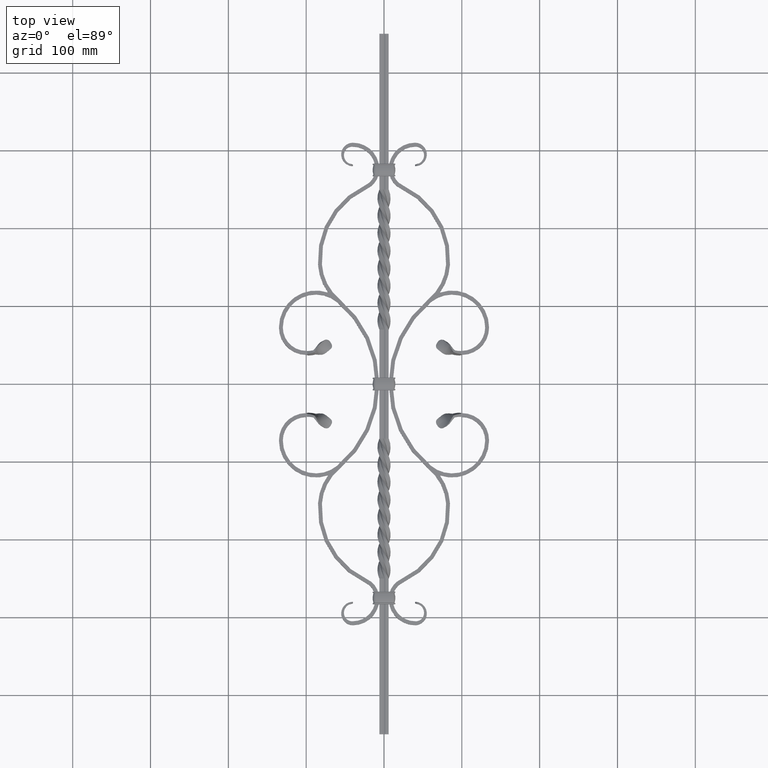
[diagram: clean part render]
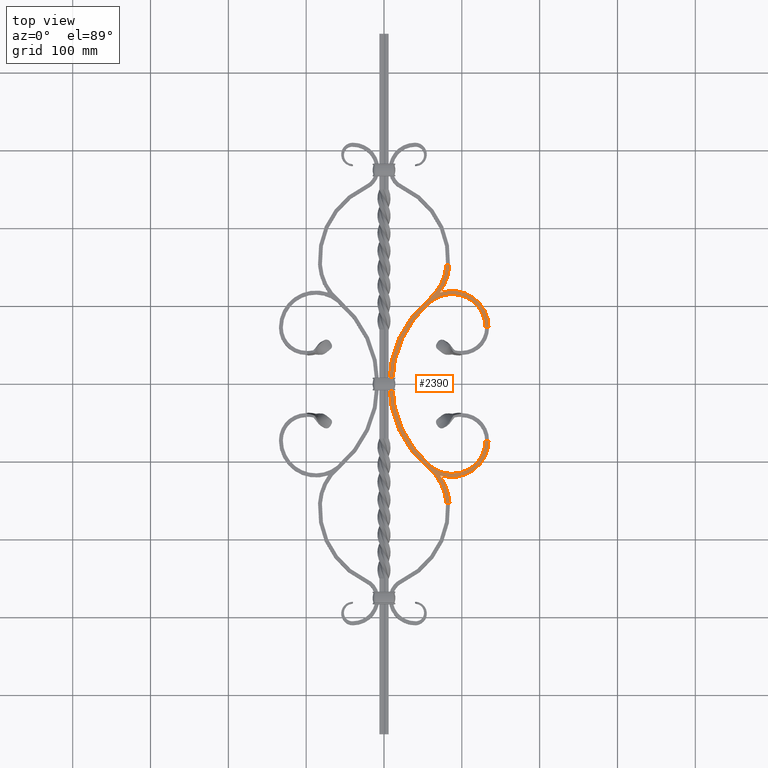
[diagram: same view with one face highlighted and labeled with its STEP entity id]
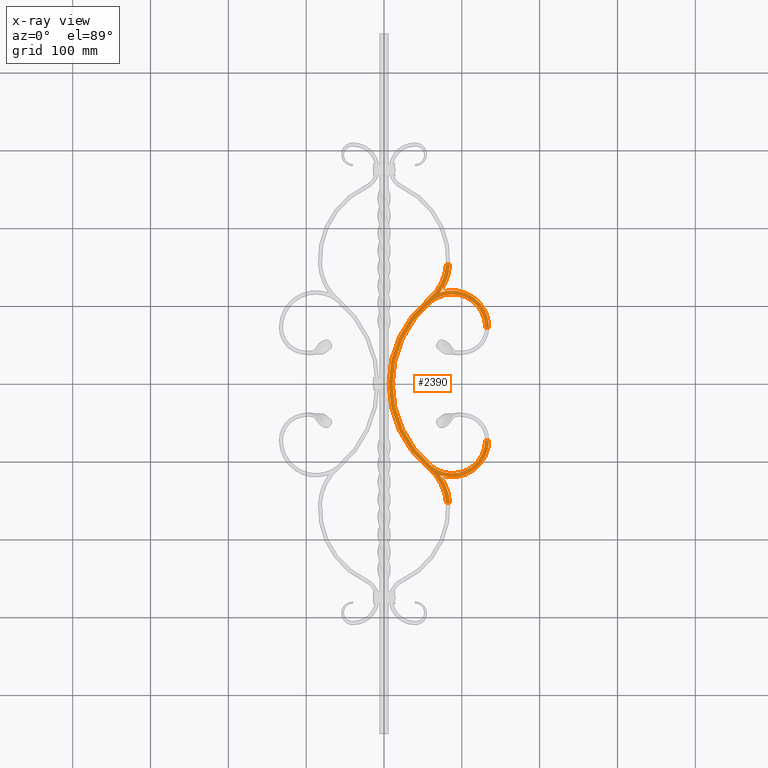
[diagram: x-ray of the same camera — body ghosted, the highlighted face saturated]
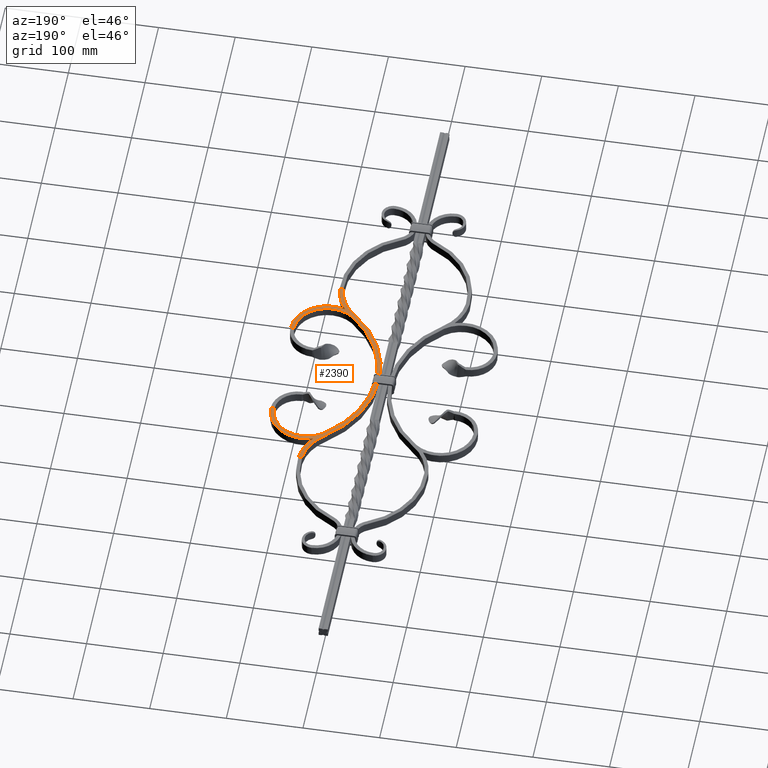
[diagram: same view with one face highlighted and labeled with its STEP entity id]
A machine part, top view. The second image highlights one B-rep face of the part: STEP entity #2390.
The next image is the same camera in x-ray: the body ghosted, the highlighted face saturated — about 0% of this face is hidden behind the body in this view.
A second angle (auxiliary view) of the same face is appended — the face is thin or edge-on in the first view.
In plain terms, the highlighted planar face has unit normal (0, 0, 1).
Its self-contained STEP definition (entity closure, byte-faithful):
#249 = DIRECTION ( 'NONE',  ( -0.000000000000000000, 0.000000000000000000, 1.000000000000000000 ) ) ;
#617 = VECTOR ( 'NONE', #26972, 1000.000000000000000 ) ;
#1238 = EDGE_CURVE ( 'NONE', #15356, #3606, #40975, .T. ) ;
#1552 = DIRECTION ( 'NONE',  ( -0.000000000000000000, 0.000000000000000000, 1.000000000000000000 ) ) ;
#1879 = DIRECTION ( 'NONE',  ( -0.9978213629846619526, -0.06597368847829708505, 0.000000000000000000 ) ) ;
#2390 = ADVANCED_FACE ( 'NONE', ( #30751 ), #5873, .T. ) ;
#3256 = DIRECTION ( 'NONE',  ( -0.6394402218073275135, 0.7688408175526294519, 0.000000000000000000 ) ) ;
#3384 = CARTESIAN_POINT ( 'NONE',  ( 87.50000000000007105, 72.50000000000001421, 6.000000000000000000 ) ) ;
#3524 = DIRECTION ( 'NONE',  ( -0.000000000000000000, -0.000000000000000000, -1.000000000000000000 ) ) ;
#3606 = VERTEX_POINT ( 'NONE', #23970 ) ;
#3692 = ORIENTED_EDGE ( 'NONE', *, *, #36919, .T. ) ;
#3796 = CARTESIAN_POINT ( 'NONE',  ( 16.70351354349273976, -157.6232479139785880, 6.000000000000000000 ) ) ;
#4104 = CARTESIAN_POINT ( 'NONE',  ( 135.0000000000000853, 72.50000000000002842, 6.000000000000000000 ) ) ;
#4187 = EDGE_CURVE ( 'NONE', #37057, #37682, #25666, .T. ) ;
#5621 = EDGE_CURVE ( 'NONE', #18560, #16923, #17453, .T. ) ;
#5873 = PLANE ( 'NONE',  #8162 ) ;
#5935 = EDGE_CURVE ( 'NONE', #16923, #20933, #26081, .T. ) ;
#7184 = ORIENTED_EDGE ( 'NONE', *, *, #39743, .T. ) ;
#8162 = AXIS2_PLACEMENT_3D ( 'NONE', #9459, #32183, #22404 ) ;
#8573 = DIRECTION ( 'NONE',  ( -0.6394402218073275135, -0.7688408175526294519, 0.000000000000000000 ) ) ;
#8773 = DIRECTION ( 'NONE',  ( -0.000000000000000000, -0.000000000000000000, -1.000000000000000000 ) ) ;
#9019 = ORIENTED_EDGE ( 'NONE', *, *, #15647, .F. ) ;
#9459 = CARTESIAN_POINT ( 'NONE',  ( 79.78213658847560907, -153.4526322298627861, 6.000000000000000000 ) ) ;
#9585 = CARTESIAN_POINT ( 'NONE',  ( 135.0000000000000853, -72.50000000000002842, 6.000000000000000000 ) ) ;
#9627 = CARTESIAN_POINT ( 'NONE',  ( 57.12658946415187700, 109.0199388337499187, 6.000000000000000000 ) ) ;
#10146 = VERTEX_POINT ( 'NONE', #33355 ) ;
#10289 = ORIENTED_EDGE ( 'NONE', *, *, #1238, .F. ) ;
#10318 = CARTESIAN_POINT ( 'NONE',  ( 60.32379057318861015, -105.1757347459866594, 6.000000000000000000 ) ) ;
#10410 = CARTESIAN_POINT ( 'NONE',  ( 130.0000000000000568, -72.50000000000001421, 6.000000000000000000 ) ) ;
#10574 = AXIS2_PLACEMENT_3D ( 'NONE', #42050, #16209, #25898 ) ;
#11194 = ORIENTED_EDGE ( 'NONE', *, *, #5621, .F. ) ;
#11445 = CARTESIAN_POINT ( 'NONE',  ( 79.78213657171579598, -153.4526322309708917, 6.000000000000000000 ) ) ;
#11688 = ORIENTED_EDGE ( 'NONE', *, *, #17509, .T. ) ;
#12330 = DIRECTION ( 'NONE',  ( -0.6394402218073277355, -0.7688408175526294519, 0.000000000000000000 ) ) ;
#12443 = EDGE_CURVE ( 'NONE', #22860, #18560, #19401, .T. ) ;
#12755 = CARTESIAN_POINT ( 'NONE',  ( 87.50000000000007105, 72.50000000000001421, 6.000000000000000000 ) ) ;
#13004 = AXIS2_PLACEMENT_3D ( 'NONE', #12755, #25998, #31915 ) ;
#13128 = DIRECTION ( 'NONE',  ( -1.000000000000000000, -0.000000000000000000, -0.000000000000000000 ) ) ;
#14144 = LINE ( 'NONE', #11445, #16203 ) ;
#14629 = ORIENTED_EDGE ( 'NONE', *, *, #18806, .T. ) ;
#14646 = EDGE_CURVE ( 'NONE', #29363, #32473, #23384, .T. ) ;
#15243 = EDGE_CURVE ( 'NONE', #37057, #31383, #28910, .T. ) ;
#15356 = VERTEX_POINT ( 'NONE', #10318 ) ;
#15647 = EDGE_CURVE ( 'NONE', #38817, #22860, #14144, .T. ) ;
#15916 = CARTESIAN_POINT ( 'NONE',  ( 79.78213657171579598, -153.4526322309708917, 6.000000000000000000 ) ) ;
#15947 = ORIENTED_EDGE ( 'NONE', *, *, #20250, .T. ) ;
#16203 = VECTOR ( 'NONE', #1879, 1000.000000000000227 ) ;
#16209 = DIRECTION ( 'NONE',  ( -0.000000000000000000, 0.000000000000000000, 1.000000000000000000 ) ) ;
#16216 = CARTESIAN_POINT ( 'NONE',  ( 147.7978081062374258, -2.898016718037498487E-14, 6.000000000000000000 ) ) ;
#16369 = CARTESIAN_POINT ( 'NONE',  ( 16.70351354349273976, -157.6232479139785880, 6.000000000000000000 ) ) ;
#16400 = AXIS2_PLACEMENT_3D ( 'NONE', #16216, #19502, #22895 ) ;
#16923 = VERTEX_POINT ( 'NONE', #9627 ) ;
#17026 = CIRCLE ( 'NONE', #30237, 136.7978030625138501 ) ;
#17453 = CIRCLE ( 'NONE', #16400, 141.7978030625138501 ) ;
#17506 = ORIENTED_EDGE ( 'NONE', *, *, #4187, .T. ) ;
#17509 = EDGE_CURVE ( 'NONE', #10146, #36096, #32888, .T. ) ;
#18276 = CARTESIAN_POINT ( 'NONE',  ( 130.0000000000000568, 72.50000000000001421, 6.000000000000000000 ) ) ;
#18401 = DIRECTION ( 'NONE',  ( -0.000000000000000000, 0.000000000000000000, 1.000000000000000000 ) ) ;
#18560 = VERTEX_POINT ( 'NONE', #26674 ) ;
#18806 = EDGE_CURVE ( 'NONE', #32473, #31383, #24197, .T. ) ;
#18844 = CARTESIAN_POINT ( 'NONE',  ( 60.32379057318865279, 105.1757347459867589, 6.000000000000000000 ) ) ;
#19401 = CIRCLE ( 'NONE', #23065, 63.21634852184706688 ) ;
#19502 = DIRECTION ( 'NONE',  ( -0.000000000000000000, -0.000000000000000000, -1.000000000000000000 ) ) ;
#19637 = LINE ( 'NONE', #10410, #37367 ) ;
#19777 = EDGE_CURVE ( 'NONE', #38817, #10146, #34338, .T. ) ;
#20250 = EDGE_CURVE ( 'NONE', #15356, #29363, #17026, .T. ) ;
#20697 = ORIENTED_EDGE ( 'NONE', *, *, #15243, .F. ) ;
#20743 = DIRECTION ( 'NONE',  ( 0.6394402218073302890, -0.7688408175526272315, 0.000000000000000000 ) ) ;
#20890 = DIRECTION ( 'NONE',  ( -0.000000000000000000, 0.000000000000000000, 1.000000000000000000 ) ) ;
#20933 = VERTEX_POINT ( 'NONE', #30311 ) ;
#20936 = DIRECTION ( 'NONE',  ( 0.6394402218073298449, -0.7688408175526275645, 0.000000000000000000 ) ) ;
#22404 = DIRECTION ( 'NONE',  ( -1.000000000000000000, 0.000000000000000000, 0.000000000000000000 ) ) ;
#22860 = VERTEX_POINT ( 'NONE', #15916 ) ;
#22895 = DIRECTION ( 'NONE',  ( -0.6394402218073277355, -0.7688408175526294519, 0.000000000000000000 ) ) ;
#23065 = AXIS2_PLACEMENT_3D ( 'NONE', #3796, #249, #32804 ) ;
#23188 = VECTOR ( 'NONE', #27934, 1000.000000000000000 ) ;
#23384 = CIRCLE ( 'NONE', #26349, 42.50000000000000711 ) ;
#23970 = CARTESIAN_POINT ( 'NONE',  ( 130.0000000000000853, -72.50000000000002842, 6.000000000000000000 ) ) ;
#24062 = CARTESIAN_POINT ( 'NONE',  ( 16.70351354349273976, 157.6232479139785880, 6.000000000000000000 ) ) ;
#24197 = LINE ( 'NONE', #18276, #23188 ) ;
#25666 = CIRCLE ( 'NONE', #41380, 68.21634852184703846 ) ;
#25898 = DIRECTION ( 'NONE',  ( -0.6394402218073275135, -0.7688408175526294519, 0.000000000000000000 ) ) ;
#25998 = DIRECTION ( 'NONE',  ( -0.000000000000000000, -0.000000000000000000, -1.000000000000000000 ) ) ;
#26081 = CIRCLE ( 'NONE', #32179, 63.21634852184700293 ) ;
#26349 = AXIS2_PLACEMENT_3D ( 'NONE', #3384, #3524, #3256 ) ;
#26674 = CARTESIAN_POINT ( 'NONE',  ( 57.12658946415199068, -109.0199388337497481, 6.000000000000000000 ) ) ;
#26972 = DIRECTION ( 'NONE',  ( -0.9978213629846620636, 0.06597368847829634952, 0.000000000000000000 ) ) ;
#27069 = ORIENTED_EDGE ( 'NONE', *, *, #14646, .T. ) ;
#27261 = CARTESIAN_POINT ( 'NONE',  ( 84.77124340339889841, 153.1227637874713707, 6.000000000000000000 ) ) ;
#27934 = DIRECTION ( 'NONE',  ( 1.000000000000000000, 0.000000000000000000, 0.000000000000000000 ) ) ;
#28652 = CARTESIAN_POINT ( 'NONE',  ( 147.7978081062374258, -2.898016718037498487E-14, 6.000000000000000000 ) ) ;
#28910 = CIRCLE ( 'NONE', #13004, 47.50000000000000711 ) ;
#29363 = VERTEX_POINT ( 'NONE', #18844 ) ;
#30237 = AXIS2_PLACEMENT_3D ( 'NONE', #28652, #8773, #12330 ) ;
#30311 = CARTESIAN_POINT ( 'NONE',  ( 79.78213658847553802, 153.4526322298628429, 6.000000000000000000 ) ) ;
#30751 = FACE_OUTER_BOUND ( 'NONE', #39622, .T. ) ;
#31383 = VERTEX_POINT ( 'NONE', #4104 ) ;
#31410 = CARTESIAN_POINT ( 'NONE',  ( 84.77124338663912795, -153.1227637885793911, 6.000000000000000000 ) ) ;
#31915 = DIRECTION ( 'NONE',  ( -0.6394402218073275135, 0.7688408175526294519, 0.000000000000000000 ) ) ;
#31967 = DIRECTION ( 'NONE',  ( -0.000000000000000000, 0.000000000000000000, 1.000000000000000000 ) ) ;
#32179 = AXIS2_PLACEMENT_3D ( 'NONE', #40025, #20890, #20743 ) ;
#32183 = DIRECTION ( 'NONE',  ( 0.000000000000000000, 0.000000000000000000, 1.000000000000000000 ) ) ;
#32381 = DIRECTION ( 'NONE',  ( 0.9978213629846620636, 0.06597368847829707117, 0.000000000000000000 ) ) ;
#32473 = VERTEX_POINT ( 'NONE', #34363 ) ;
#32804 = DIRECTION ( 'NONE',  ( 0.9978213629846619526, 0.06597368847829729321, 0.000000000000000000 ) ) ;
#32888 = CIRCLE ( 'NONE', #10574, 47.50000000000000711 ) ;
#33027 = AXIS2_PLACEMENT_3D ( 'NONE', #37850, #18401, #8573 ) ;
#33355 = CARTESIAN_POINT ( 'NONE',  ( 71.73069833555307184, -117.3060166162499769, 6.000000000000000000 ) ) ;
#33767 = CARTESIAN_POINT ( 'NONE',  ( 79.78213658847560907, 153.4526322298628429, 6.000000000000000000 ) ) ;
#34338 = CIRCLE ( 'NONE', #34615, 68.21634852184701003 ) ;
#34363 = CARTESIAN_POINT ( 'NONE',  ( 130.0000000000000853, 72.50000000000002842, 6.000000000000000000 ) ) ;
#34385 = ORIENTED_EDGE ( 'NONE', *, *, #12443, .F. ) ;
#34615 = AXIS2_PLACEMENT_3D ( 'NONE', #16369, #31967, #32381 ) ;
#34727 = ORIENTED_EDGE ( 'NONE', *, *, #5935, .F. ) ;
#36096 = VERTEX_POINT ( 'NONE', #9585 ) ;
#36919 = EDGE_CURVE ( 'NONE', #36096, #3606, #19637, .T. ) ;
#37057 = VERTEX_POINT ( 'NONE', #40923 ) ;
#37256 = LINE ( 'NONE', #33767, #617 ) ;
#37367 = VECTOR ( 'NONE', #13128, 1000.000000000000000 ) ;
#37682 = VERTEX_POINT ( 'NONE', #27261 ) ;
#37850 = CARTESIAN_POINT ( 'NONE',  ( 87.50000000000007105, -72.50000000000001421, 6.000000000000000000 ) ) ;
#38817 = VERTEX_POINT ( 'NONE', #31410 ) ;
#39622 = EDGE_LOOP ( 'NONE', ( #15947, #27069, #14629, #20697, #17506, #7184, #34727, #11194, #34385, #9019, #42035, #11688, #3692, #10289 ) ) ;
#39743 = EDGE_CURVE ( 'NONE', #37682, #20933, #37256, .T. ) ;
#40025 = CARTESIAN_POINT ( 'NONE',  ( 16.70351354349273976, 157.6232479139785880, 6.000000000000000000 ) ) ;
#40923 = CARTESIAN_POINT ( 'NONE',  ( 71.73069833555311448, 117.3060166162500053, 6.000000000000000000 ) ) ;
#40975 = CIRCLE ( 'NONE', #33027, 42.50000000000000711 ) ;
#41380 = AXIS2_PLACEMENT_3D ( 'NONE', #24062, #1552, #20936 ) ;
#42035 = ORIENTED_EDGE ( 'NONE', *, *, #19777, .T. ) ;
#42050 = CARTESIAN_POINT ( 'NONE',  ( 87.50000000000007105, -72.50000000000001421, 6.000000000000000000 ) ) ;